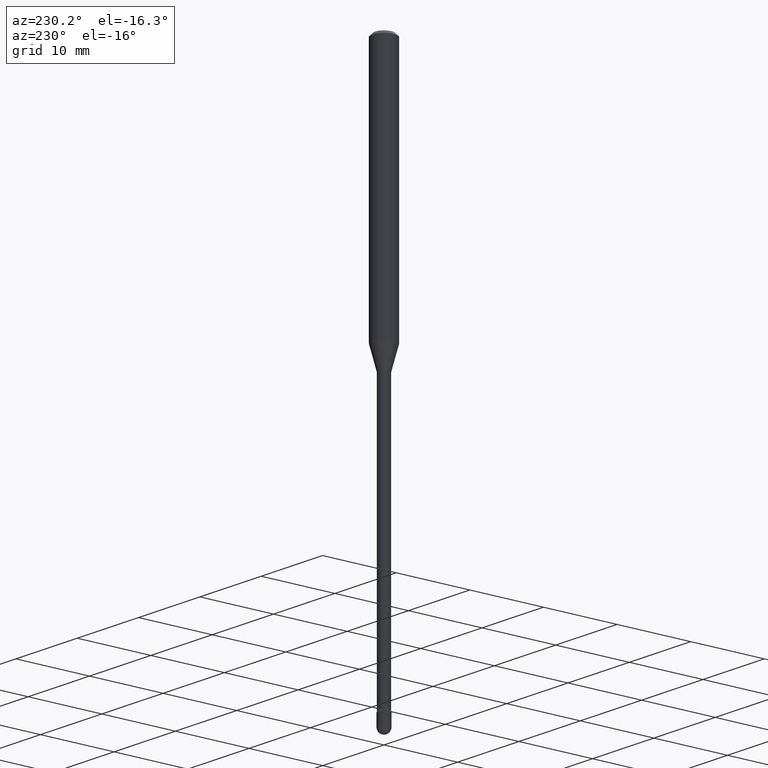
[diagram: clean part render]
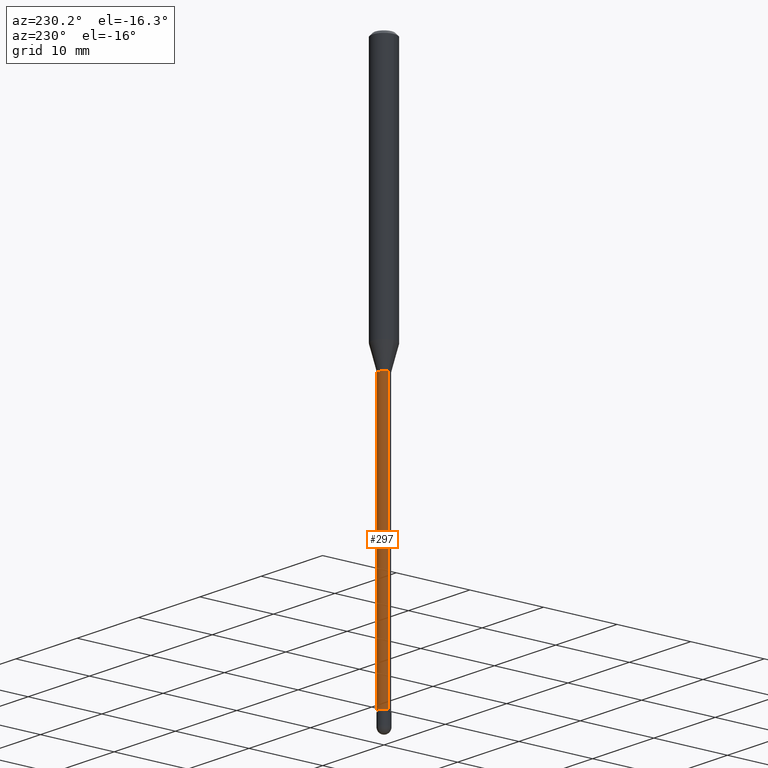
[diagram: same view with one face highlighted and labeled with its STEP entity id]
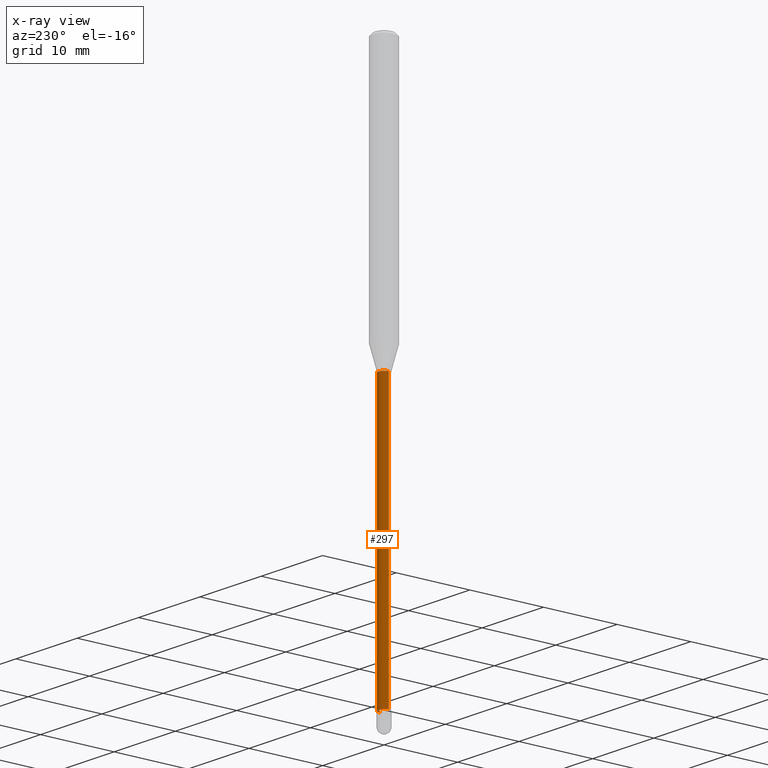
[diagram: x-ray of the same camera — body ghosted, the highlighted face saturated]
A machine part, auxiliary view. The second image highlights one B-rep face of the part: STEP entity #297.
The next image is the same camera in x-ray: the body ghosted, the highlighted face saturated — about 0% of this face is hidden behind the body in this view.
In plain terms, the highlighted cylindrical surface (edge-blend (fillet) strip) has radius 0.7404 mm, axis along (-0, 0, 1).
Its self-contained STEP definition (entity closure, byte-faithful):
#5 = DIRECTION ( 'NONE',  ( -2.445468806185136877E-29, 3.491481338843145188E-15, 1.000000000000000000 ) ) ;
#23 = AXIS2_PLACEMENT_3D ( 'NONE', #428, #555, #88 ) ;
#42 = CARTESIAN_POINT ( 'NONE',  ( 0.02915000000000016883, -1.032809342904083303E-14, -2.899783525791635341 ) ) ;
#45 = LINE ( 'NONE', #315, #206 ) ;
#55 = DIRECTION ( 'NONE',  ( -2.445468806185136877E-29, 3.491481338843145188E-15, 1.000000000000000000 ) ) ;
#58 = LINE ( 'NONE', #102, #94 ) ;
#60 = DIRECTION ( 'NONE',  ( -2.445468806185136597E-29, 3.491481338843145583E-15, 1.000000000000000000 ) ) ;
#67 = EDGE_LOOP ( 'NONE', ( #386, #156, #442, #286 ) ) ;
#81 = CARTESIAN_POINT ( 'NONE',  ( 0.02914999999999999883, -5.273096236955193649E-15, -1.451974787463811145 ) ) ;
#88 = DIRECTION ( 'NONE',  ( 1.000000000000000000, -6.982962677686268288E-15, 0.000000000000000000 ) ) ;
#89 = VERTEX_POINT ( 'NONE', #538 ) ;
#94 = VECTOR ( 'NONE', #55, 39.37007874015748143 ) ;
#100 = EDGE_CURVE ( 'NONE', #89, #115, #45, .T. ) ;
#102 = CARTESIAN_POINT ( 'NONE',  ( 0.02915000000000008210, -2.035533620545535777E-16, 4.780733988912474930E-16 ) ) ;
#115 = VERTEX_POINT ( 'NONE', #334 ) ;
#156 = ORIENTED_EDGE ( 'NONE', *, *, #100, .T. ) ;
#190 = DIRECTION ( 'NONE',  ( 1.000000000000000000, -6.982962677686266711E-15, 4.786146996491814145E-29 ) ) ;
#193 = CIRCLE ( 'NONE', #376, 0.02915000000000016883 ) ;
#206 = VECTOR ( 'NONE', #5, 39.37007874015748143 ) ;
#237 = CARTESIAN_POINT ( 'NONE',  ( 7.091330157012996876E-29, -1.012454006698627704E-14, -2.899783525791635341 ) ) ;
#281 = FACE_OUTER_BOUND ( 'NONE', #67, .T. ) ;
#286 = ORIENTED_EDGE ( 'NONE', *, *, #502, .F. ) ;
#297 = ADVANCED_FACE ( 'NONE', ( #281 ), #421, .T. ) ;
#306 = AXIS2_PLACEMENT_3D ( 'NONE', #466, #60, #190 ) ;
#315 = CARTESIAN_POINT ( 'NONE',  ( -0.02915000000000008210, 2.071232074740714638E-16, 4.780733988912446334E-16 ) ) ;
#334 = CARTESIAN_POINT ( 'NONE',  ( -0.02914999999999999883, -7.389918263469384527E-15, -1.451974787463811145 ) ) ;
#376 = AXIS2_PLACEMENT_3D ( 'NONE', #237, #522, #398 ) ;
#386 = ORIENTED_EDGE ( 'NONE', *, *, #523, .T. ) ;
#393 = VERTEX_POINT ( 'NONE', #81 ) ;
#398 = DIRECTION ( 'NONE',  ( 1.000000000000000000, -6.982962677686260400E-15, 0.000000000000000000 ) ) ;
#414 = EDGE_CURVE ( 'NONE', #393, #115, #470, .T. ) ;
#421 = CYLINDRICAL_SURFACE ( 'NONE', #306, 0.02915000000000008210 ) ;
#426 = VERTEX_POINT ( 'NONE', #42 ) ;
#428 = CARTESIAN_POINT ( 'NONE',  ( 3.550759050110043662E-29, -5.069542874900639233E-15, -1.451974787463811145 ) ) ;
#442 = ORIENTED_EDGE ( 'NONE', *, *, #414, .F. ) ;
#466 = CARTESIAN_POINT ( 'NONE',  ( -1.169113584055446105E-44, 1.669184350826100908E-30, 4.780733988912460139E-16 ) ) ;
#470 = CIRCLE ( 'NONE', #23, 0.02914999999999999883 ) ;
#502 = EDGE_CURVE ( 'NONE', #426, #393, #58, .T. ) ;
#522 = DIRECTION ( 'NONE',  ( -2.445468806185136597E-29, 3.491481338843145583E-15, 1.000000000000000000 ) ) ;
#523 = EDGE_CURVE ( 'NONE', #426, #89, #193, .T. ) ;
#538 = CARTESIAN_POINT ( 'NONE',  ( -0.02915000000000016883, -9.923442431721801475E-15, -2.899783525791635341 ) ) ;
#555 = DIRECTION ( 'NONE',  ( -2.445468806185136597E-29, 3.491481338843145583E-15, 1.000000000000000000 ) ) ;